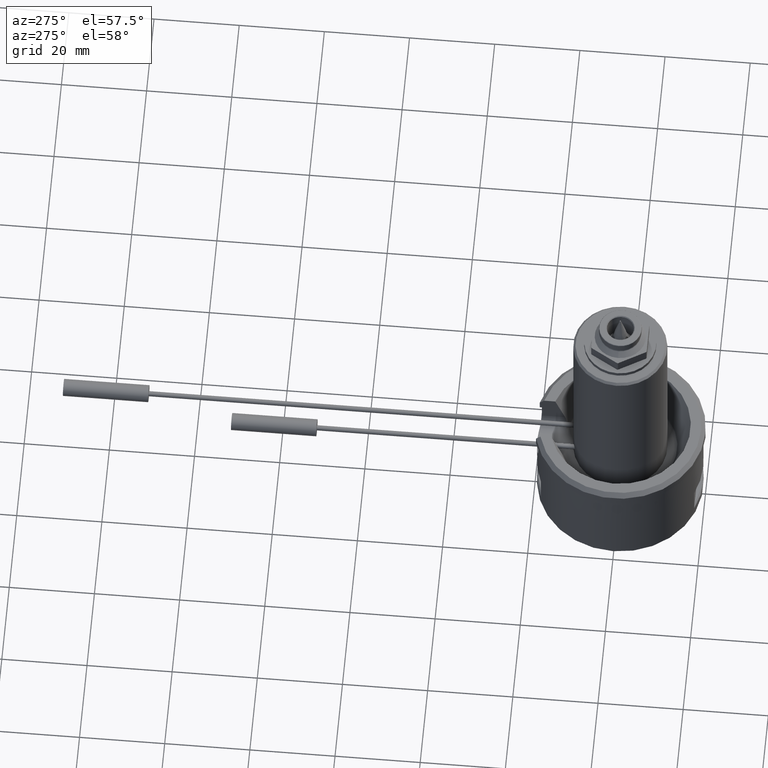
[diagram: clean part render]
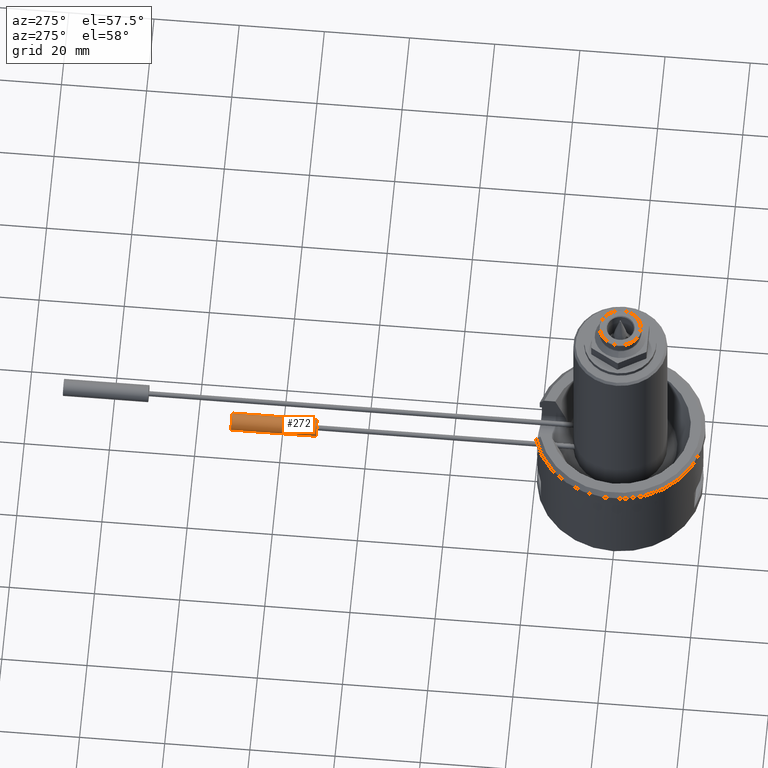
[diagram: same view with one face highlighted and labeled with its STEP entity id]
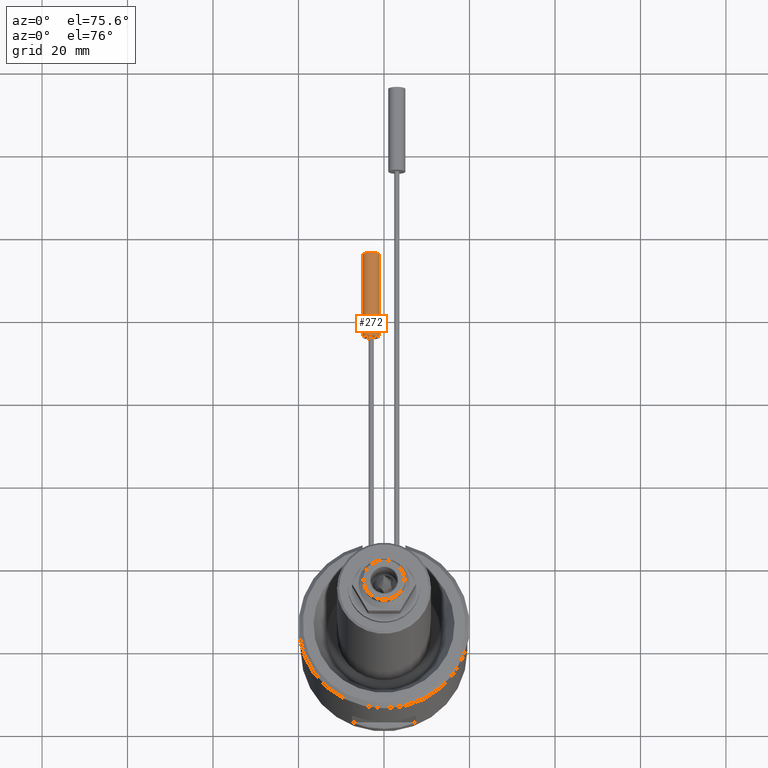
[diagram: same view with one face highlighted and labeled with its STEP entity id]
A machine part, auxiliary view. The second image highlights one B-rep face of the part: STEP entity #272.
A second angle (auxiliary view) of the same face is appended — the face is thin or edge-on in the first view.
In plain terms, the highlighted cylindrical surface (bore or boss wall) has radius 2 mm, axis along (0, -1, 0).
Its self-contained STEP definition (entity closure, byte-faithful):
#51=CYLINDRICAL_SURFACE('',#1234,2.);
#272=ADVANCED_FACE('',(#393,#394),#51,.T.);
#393=FACE_BOUND('',#486,.T.);
#394=FACE_BOUND('',#487,.T.);
#486=EDGE_LOOP('',(#718));
#487=EDGE_LOOP('',(#719));
#718=ORIENTED_EDGE('',*,*,#1049,.F.);
#719=ORIENTED_EDGE('',*,*,#1050,.T.);
#908=VERTEX_POINT('',#2234);
#909=VERTEX_POINT('',#2236);
#1049=EDGE_CURVE('',#908,#908,#1117,.T.);
#1050=EDGE_CURVE('',#909,#909,#1118,.T.);
#1117=CIRCLE('',#1232,2.);
#1118=CIRCLE('',#1233,2.);
#1232=AXIS2_PLACEMENT_3D('',#2233,#1531,#1532);
#1233=AXIS2_PLACEMENT_3D('',#2235,#1533,#1534);
#1234=AXIS2_PLACEMENT_3D('',#2237,#1535,#1536);
#1531=DIRECTION('',(0.,1.,0.));
#1532=DIRECTION('',(1.,0.,0.));
#1533=DIRECTION('',(0.,1.,0.));
#1534=DIRECTION('',(1.,0.,0.));
#1535=DIRECTION('',(0.,-1.,0.));
#1536=DIRECTION('',(0.,0.,-0.999999999999999));
#2233=CARTESIAN_POINT('',(-3.,91.,18.5));
#2234=CARTESIAN_POINT('',(-0.999999999999999,91.,18.5));
#2235=CARTESIAN_POINT('',(-3.,71.,18.5));
#2236=CARTESIAN_POINT('',(-0.999999999999999,71.,18.5));
#2237=CARTESIAN_POINT('',(-3.,91.,18.5));